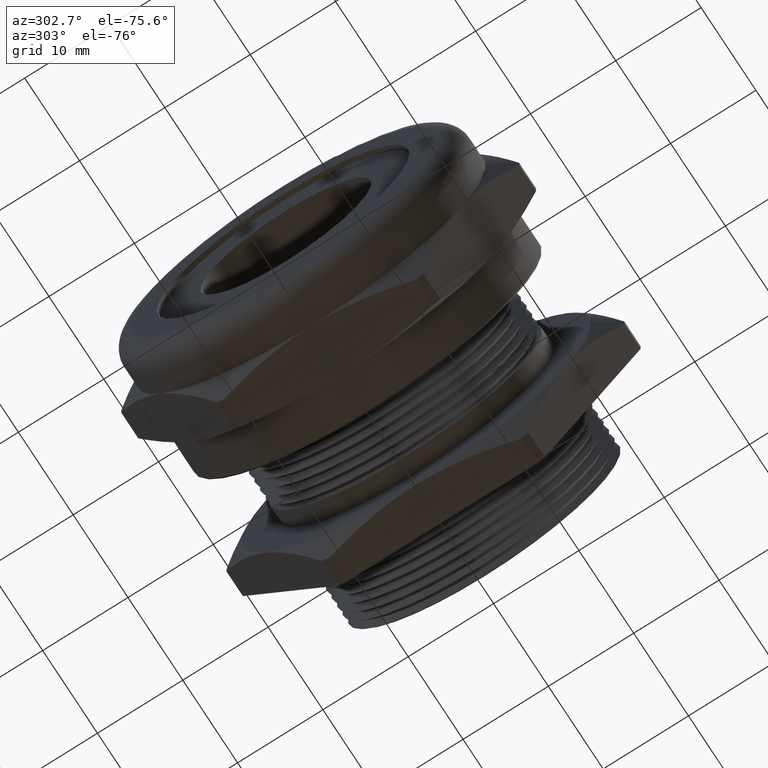
[diagram: clean part render]
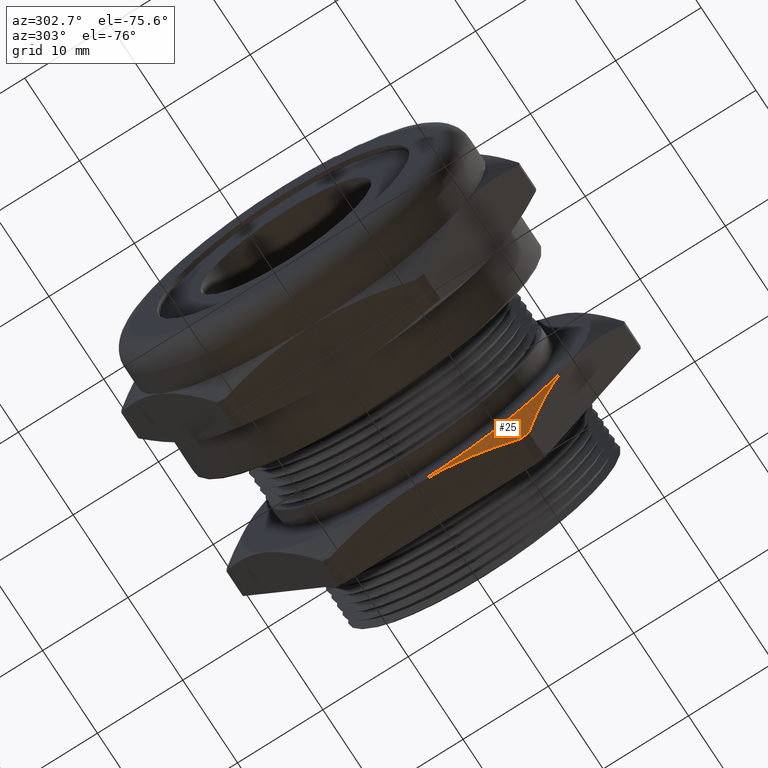
[diagram: same view with one face highlighted and labeled with its STEP entity id]
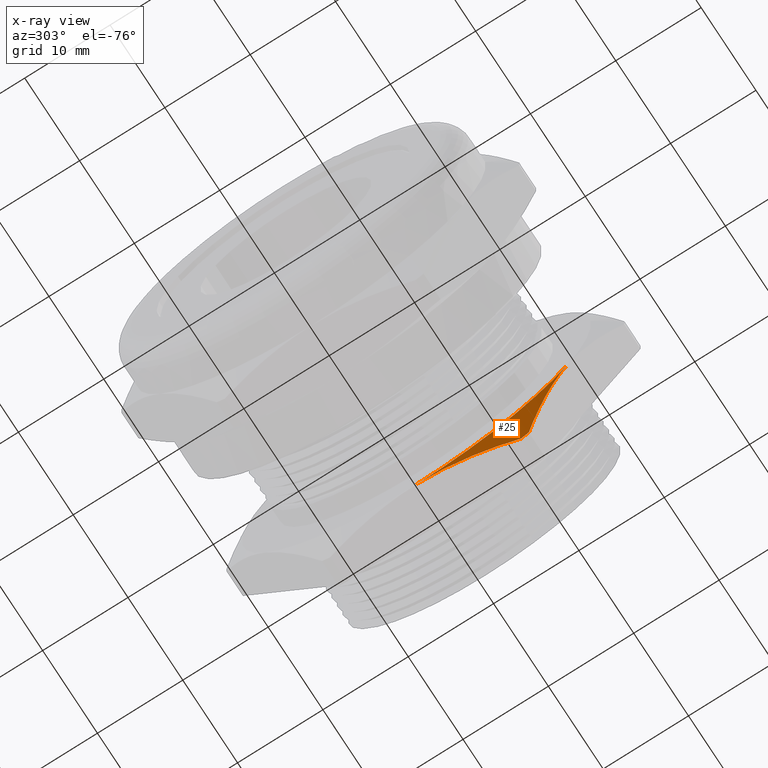
[diagram: x-ray of the same camera — body ghosted, the highlighted face saturated]
A machine part, auxiliary view. The second image highlights one B-rep face of the part: STEP entity #25.
The next image is the same camera in x-ray: the body ghosted, the highlighted face saturated — about 0% of this face is hidden behind the body in this view.
In plain terms, the highlighted conical surface has half-angle 60 deg.
Its self-contained STEP definition (entity closure, byte-faithful):
#20 = ORIENTED_EDGE ( 'NONE', *, *, #192, .F. ) ;
#21 = ORIENTED_EDGE ( 'NONE', *, *, #3468, .F. ) ;
#22 = EDGE_LOOP ( 'NONE', ( #23, #24, #21, #20 ) ) ;
#23 = ORIENTED_EDGE ( 'NONE', *, *, #356, .T. ) ;
#24 = ORIENTED_EDGE ( 'NONE', *, *, #204, .F. ) ;
#25 = ADVANCED_FACE ( 'NONE', ( #1223 ), #1222, .T. ) ;
#192 = EDGE_CURVE ( 'NONE', #341, #3474, #1637, .T. ) ;
#204 = EDGE_CURVE ( 'NONE', #3469, #342, #1658, .T. ) ;
#341 = VERTEX_POINT ( 'NONE', #1903 ) ;
#342 = VERTEX_POINT ( 'NONE', #1902 ) ;
#356 = EDGE_CURVE ( 'NONE', #341, #342, #1879, .T. ) ;
#1218 = DIRECTION ( 'NONE',  ( 0.0000000000000000000, 0.0000000000000000000, 1.000000000000000000 ) ) ;
#1219 = DIRECTION ( 'NONE',  ( 1.000000000000000000, 0.0000000000000000000, 0.0000000000000000000 ) ) ;
#1220 = AXIS2_PLACEMENT_3D ( 'NONE', #1227, #1219, #1218 ) ;
#1222 = CONICAL_SURFACE ( 'NONE', #1220, 0.8050000000000000500, 1.047197551196600100 ) ;
#1223 = FACE_OUTER_BOUND ( 'NONE', #22, .T. ) ;
#1227 = CARTESIAN_POINT ( 'NONE',  ( 0.2325999999999998100, 0.0000000000000000000, 0.0000000000000000000 ) ) ;
#1628 = CARTESIAN_POINT ( 'NONE',  ( 0.2325999999999998100, 0.0000000000000000000, -0.8050000000000000500 ) ) ;
#1629 = CARTESIAN_POINT ( 'NONE',  ( 0.2325999999999997200, -0.07434340810581827100, -0.8049999999999998300 ) ) ;
#1630 = CARTESIAN_POINT ( 'NONE',  ( 0.2386402194920296000, -0.1482523111900101400, -0.8049999999999997200 ) ) ;
#1631 = CARTESIAN_POINT ( 'NONE',  ( 0.2555546315203163800, -0.2585506799880295500, -0.8050000000000000500 ) ) ;
#1632 = CARTESIAN_POINT ( 'NONE',  ( 0.2624836262716008200, -0.2952239447014034000, -0.8049999999999997200 ) ) ;
#1633 = CARTESIAN_POINT ( 'NONE',  ( 0.2785859613789508600, -0.3684090264461871700, -0.8050000000000000500 ) ) ;
#1634 = CARTESIAN_POINT ( 'NONE',  ( 0.2877104296350275800, -0.4047039077794306600, -0.8049999999999998300 ) ) ;
#1635 = CARTESIAN_POINT ( 'NONE',  ( 0.2976673753376702400, -0.4406226163056092300, -0.8050000000000000500 ) ) ;
#1637 = B_SPLINE_CURVE_WITH_KNOTS ( 'NONE', 3,
 ( #1635, #1634, #1633, #1632, #1631, #1630, #1629, #1628 ),
 .UNSPECIFIED., .F., .F.,
 ( 4, 2, 2, 4 ),
 ( 0.02149390599069374300, 0.02432037916829725400, 0.02714685234590077200, 0.03279979870110780200 ),
 .UNSPECIFIED. ) ;
#1649 = CARTESIAN_POINT ( 'NONE',  ( 0.2613489594994825600, -0.5491175619668305900, -0.6589004833450983200 ) ) ;
#1650 = CARTESIAN_POINT ( 'NONE',  ( 0.2444010586483336700, -0.6041749731156608200, -0.5635382499021149800 ) ) ;
#1651 = CARTESIAN_POINT ( 'NONE',  ( 0.2400205021264051900, -0.6226320650425679600, -0.5315696289247426900 ) ) ;
#1652 = CARTESIAN_POINT ( 'NONE',  ( 0.2341150451648740500, -0.6597817283977278600, -0.4672245245095257800 ) ) ;
#1653 = CARTESIAN_POINT ( 'NONE',  ( 0.2325999999999997200, -0.6785372933080843200, -0.4347389331601320700 ) ) ;
#1654 = CARTESIAN_POINT ( 'NONE',  ( 0.2325999999999998100, -0.6971504500464731400, -0.4025000000000000800 ) ) ;
#1658 = B_SPLINE_CURVE_WITH_KNOTS ( 'NONE', 3,
 ( #1654, #1653, #1652, #1651, #1650, #1649, #1708, #1707 ),
 .UNSPECIFIED., .F., .F.,
 ( 4, 2, 2, 4 ),
 ( 0.01131174950541886800, 0.01412467415539783700, 0.01693759880537680900, 0.02256344810533474800 ),
 .UNSPECIFIED. ) ;
#1707 = CARTESIAN_POINT ( 'NONE',  ( 0.2976673753376702900, -0.4768391418936683800, -0.7840903792026210400 ) ) ;
#1708 = CARTESIAN_POINT ( 'NONE',  ( 0.2777132917195803100, -0.5128303451596883900, -0.7217517865203355600 ) ) ;
#1875 = DIRECTION ( 'NONE',  ( 0.0000000000000000000, 0.0000000000000000000, -1.000000000000000000 ) ) ;
#1876 = DIRECTION ( 'NONE',  ( -1.000000000000000000, 0.0000000000000000000, 0.0000000000000000000 ) ) ;
#1877 = CARTESIAN_POINT ( 'NONE',  ( 0.2976673753376702400, 0.0000000000000000000, 0.0000000000000000000 ) ) ;
#1878 = AXIS2_PLACEMENT_3D ( 'NONE', #1877, #1876, #1875 ) ;
#1879 = CIRCLE ( 'NONE', #1878, 0.9177000000000000700 ) ;
#1902 = CARTESIAN_POINT ( 'NONE',  ( 0.2976673753376702900, -0.4768391418936683800, -0.7840903792026210400 ) ) ;
#1903 = CARTESIAN_POINT ( 'NONE',  ( 0.2976673753376702400, -0.4406226163056092300, -0.8050000000000000500 ) ) ;
#3468 = EDGE_CURVE ( 'NONE', #3474, #3469, #3830, .T. ) ;
#3469 = VERTEX_POINT ( 'NONE', #3826 ) ;
#3474 = VERTEX_POINT ( 'NONE', #3819 ) ;
#3819 = CARTESIAN_POINT ( 'NONE',  ( 0.2325999999999998100, 0.0000000000000000000, -0.8050000000000000500 ) ) ;
#3826 = CARTESIAN_POINT ( 'NONE',  ( 0.2325999999999998100, -0.6971504500464731400, -0.4025000000000000800 ) ) ;
#3827 = DIRECTION ( 'NONE',  ( 0.0000000000000000000, 0.0000000000000000000, 1.000000000000000000 ) ) ;
#3828 = DIRECTION ( 'NONE',  ( -1.000000000000000000, 0.0000000000000000000, 0.0000000000000000000 ) ) ;
#3829 = AXIS2_PLACEMENT_3D ( 'NONE', #3835, #3828, #3827 ) ;
#3830 = CIRCLE ( 'NONE', #3829, 0.8050000000000000500 ) ;
#3835 = CARTESIAN_POINT ( 'NONE',  ( 0.2325999999999998100, 0.0000000000000000000, 0.0000000000000000000 ) ) ;